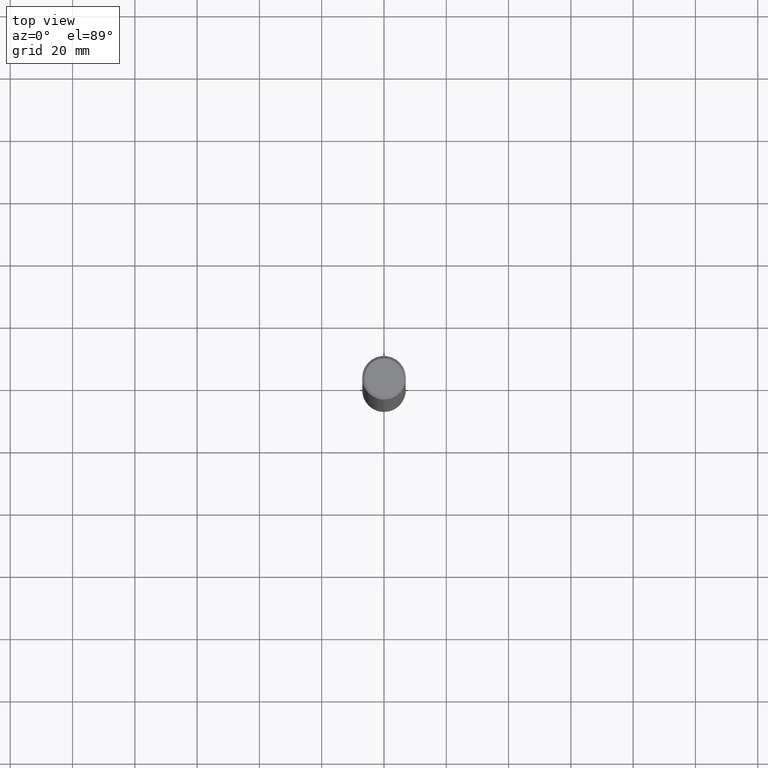
[diagram: clean part render]
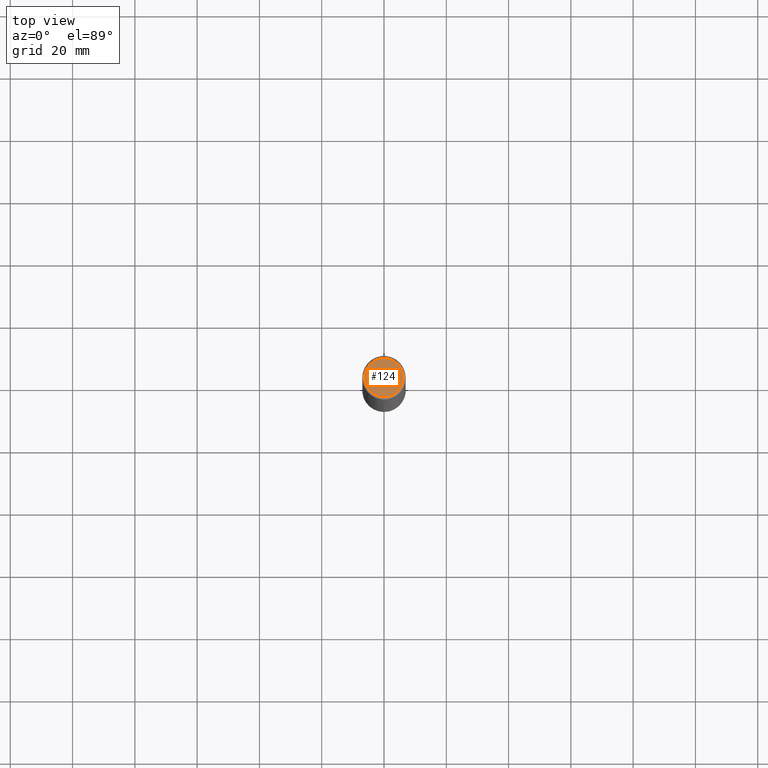
[diagram: same view with one face highlighted and labeled with its STEP entity id]
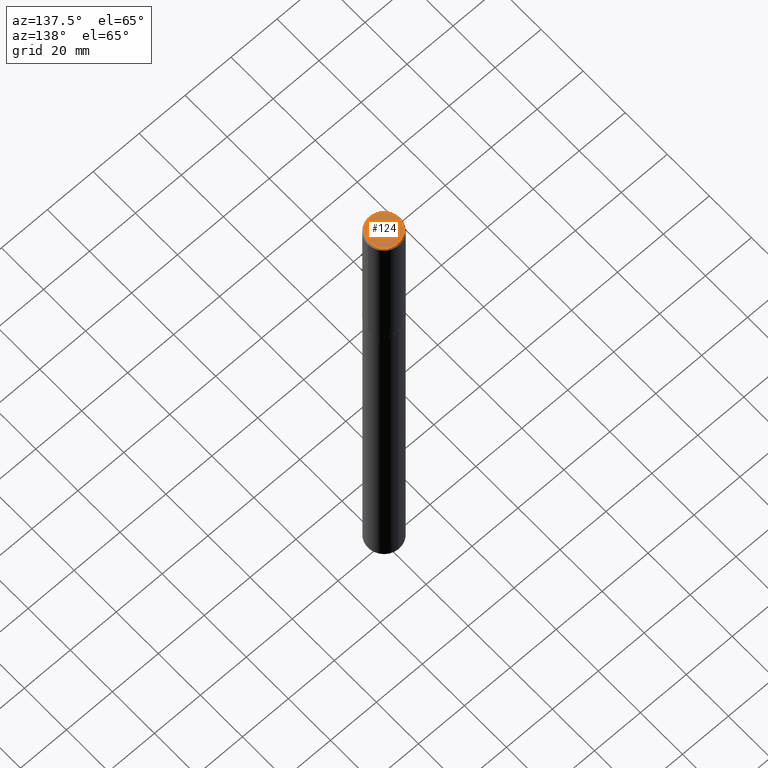
[diagram: same view with one face highlighted and labeled with its STEP entity id]
A machine part, top view. The second image highlights one B-rep face of the part: STEP entity #124.
A second angle (auxiliary view) of the same face is appended — the face is thin or edge-on in the first view.
In plain terms, the highlighted planar face has unit normal (0, -0, -1).
Its self-contained STEP definition (entity closure, byte-faithful):
#15 = EDGE_CURVE ( 'NONE', #308, #46, #214, .T. ) ;
#39 = CARTESIAN_POINT ( 'NONE',  ( -1.179965205088274773E-46, 1.684677589683407840E-32, 4.825108388640571583E-18 ) ) ;
#46 = VERTEX_POINT ( 'NONE', #83 ) ;
#48 = CARTESIAN_POINT ( 'NONE',  ( -1.179965205088274773E-46, 1.684677589683407840E-32, 4.825108388640571583E-18 ) ) ;
#61 = DIRECTION ( 'NONE',  ( 2.438088387897960049E-29, -3.491481338843145188E-15, -1.000000000000000000 ) ) ;
#62 = DIRECTION ( 'NONE',  ( 1.000000000000000000, -6.982962677686266711E-15, 4.876118653798672988E-29 ) ) ;
#83 = CARTESIAN_POINT ( 'NONE',  ( 0.2443500000000000116, -1.838112362890078477E-15, 4.825108388652965328E-18 ) ) ;
#117 = PLANE ( 'NONE',  #143 ) ;
#121 = DIRECTION ( 'NONE',  ( -1.000000000000000000, 6.982962677686265922E-15, -4.876176775795935793E-29 ) ) ;
#124 = ADVANCED_FACE ( 'NONE', ( #282 ), #117, .F. ) ;
#143 = AXIS2_PLACEMENT_3D ( 'NONE', #253, #61, #121 ) ;
#146 = CARTESIAN_POINT ( 'NONE',  ( -0.2443500000000000116, 1.760841326212062881E-15, 4.825108388628448239E-18 ) ) ;
#150 = DIRECTION ( 'NONE',  ( -2.445468806185136597E-29, 3.491481338843145583E-15, 1.000000000000000000 ) ) ;
#186 = CIRCLE ( 'NONE', #240, 0.2443500000000000116 ) ;
#195 = ORIENTED_EDGE ( 'NONE', *, *, #247, .T. ) ;
#206 = DIRECTION ( 'NONE',  ( 1.000000000000000000, -6.982962677686266711E-15, 4.876118653798672988E-29 ) ) ;
#214 = CIRCLE ( 'NONE', #269, 0.2443500000000000116 ) ;
#220 = ORIENTED_EDGE ( 'NONE', *, *, #15, .T. ) ;
#222 = EDGE_LOOP ( 'NONE', ( #220, #195 ) ) ;
#240 = AXIS2_PLACEMENT_3D ( 'NONE', #39, #150, #206 ) ;
#247 = EDGE_CURVE ( 'NONE', #46, #308, #186, .T. ) ;
#253 = CARTESIAN_POINT ( 'NONE',  ( -5.899826025441373866E-47, 8.423387948417039198E-33, 2.412554194320285792E-18 ) ) ;
#269 = AXIS2_PLACEMENT_3D ( 'NONE', #48, #346, #62 ) ;
#282 = FACE_OUTER_BOUND ( 'NONE', #222, .T. ) ;
#308 = VERTEX_POINT ( 'NONE', #146 ) ;
#346 = DIRECTION ( 'NONE',  ( -2.445468806185136597E-29, 3.491481338843145583E-15, 1.000000000000000000 ) ) ;